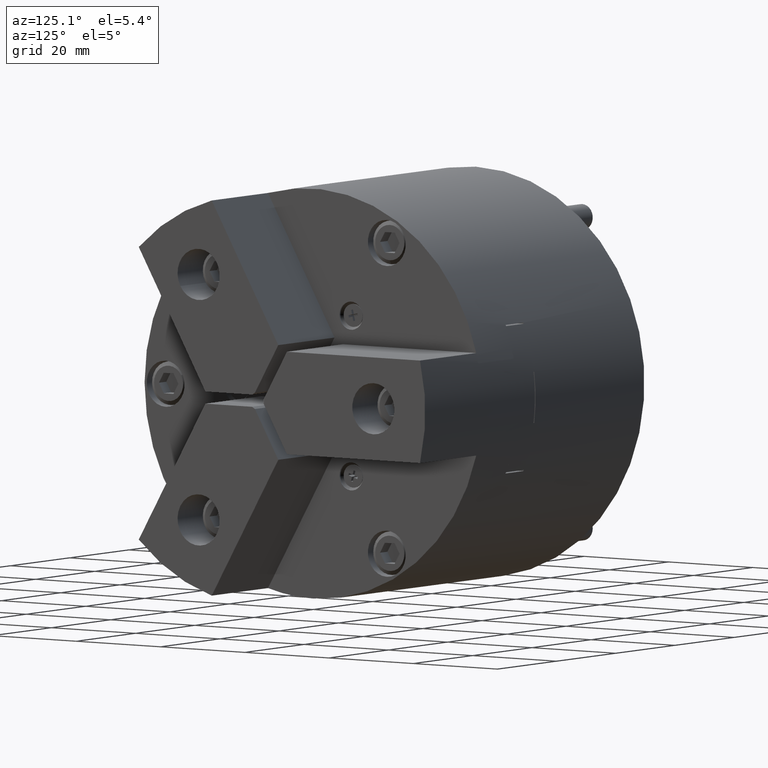
[diagram: clean part render]
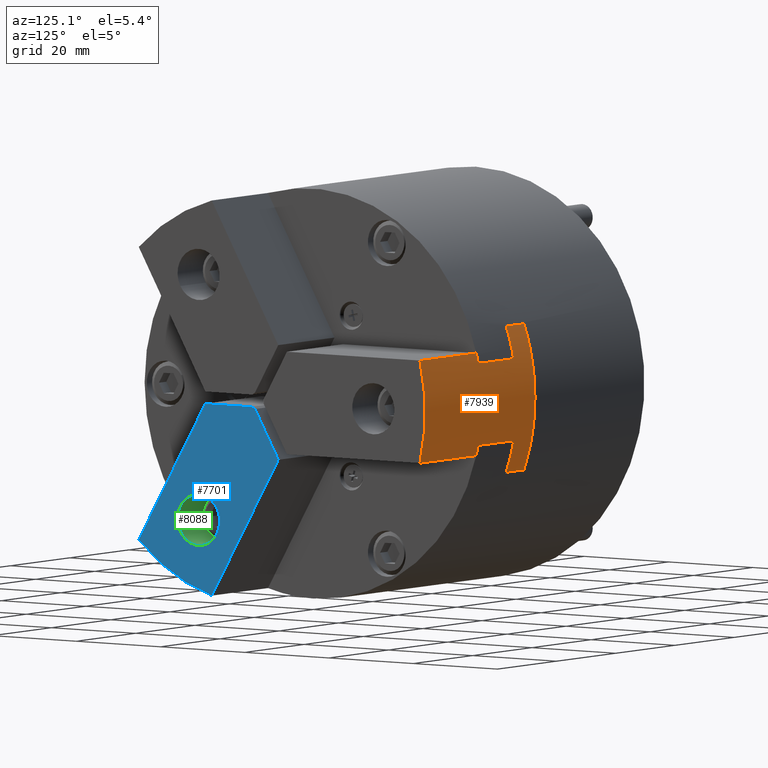
[diagram: same view with three faces highlighted in distinct colors, each labeled with its STEP entity id]
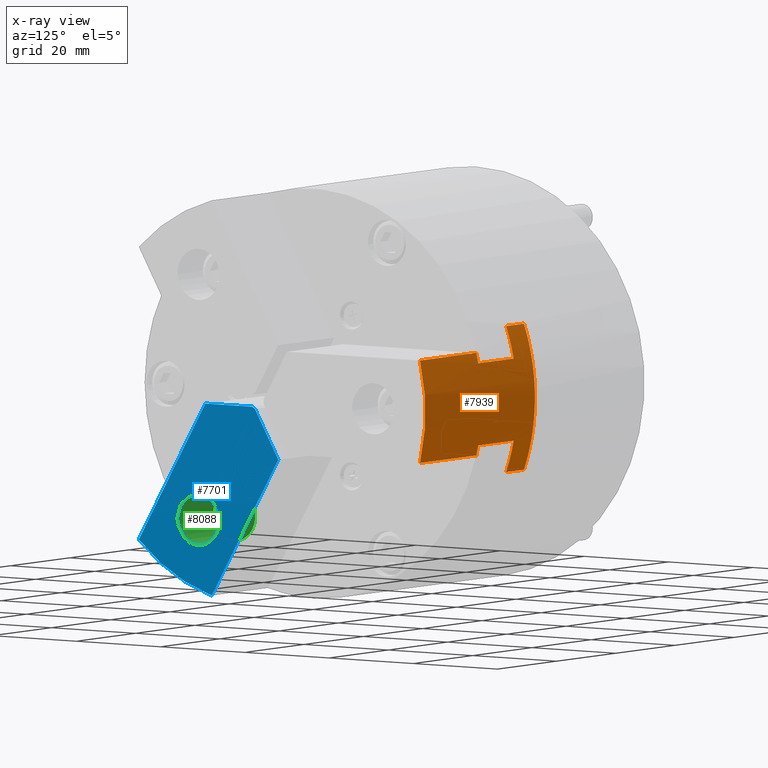
[diagram: x-ray of the same camera — body ghosted, the three highlighted faces saturated]
A machine part, auxiliary view with three faces highlighted in distinct colors.
The next image is the same camera in x-ray (body ghosted, the three faces saturated) — at least one of them is partly hidden behind the body in this view.
Their STEP definitions:

[orange] entity #7939 — the highlighted cylindrical surface (partial cylindrical patch) has radius 40 mm, axis along (-1, -0, -0).
#134=CYLINDRICAL_SURFACE('',#8623,40.);
#383=CIRCLE('',#8624,40.);
#384=CIRCLE('',#8625,40.);
#385=CIRCLE('',#8626,40.);
#386=CIRCLE('',#8627,40.);
#387=CIRCLE('',#8628,40.);
#388=CIRCLE('',#8629,40.);
#1697=ORIENTED_EDGE('',*,*,#3335,.T.);
#1698=ORIENTED_EDGE('',*,*,#3336,.T.);
#1699=ORIENTED_EDGE('',*,*,#3337,.T.);
#1700=ORIENTED_EDGE('',*,*,#3253,.T.);
#1701=ORIENTED_EDGE('',*,*,#3338,.T.);
#1702=ORIENTED_EDGE('',*,*,#3278,.T.);
#1703=ORIENTED_EDGE('',*,*,#3339,.T.);
#1704=ORIENTED_EDGE('',*,*,#3340,.T.);
#1705=ORIENTED_EDGE('',*,*,#3341,.T.);
#1706=ORIENTED_EDGE('',*,*,#3261,.F.);
#1707=ORIENTED_EDGE('',*,*,#3342,.F.);
#1708=ORIENTED_EDGE('',*,*,#3343,.T.);
#3253=EDGE_CURVE('',#4140,#4143,#4926,.T.);
#3261=EDGE_CURVE('',#4151,#4147,#4934,.T.);
#3278=EDGE_CURVE('',#4161,#4166,#4951,.T.);
#3335=EDGE_CURVE('',#4209,#4210,#383,.T.);
#3336=EDGE_CURVE('',#4210,#4211,#4988,.T.);
#3337=EDGE_CURVE('',#4211,#4140,#384,.T.);
#3338=EDGE_CURVE('',#4143,#4161,#385,.T.);
#3339=EDGE_CURVE('',#4166,#4212,#386,.T.);
#3340=EDGE_CURVE('',#4212,#4213,#4989,.T.);
#3341=EDGE_CURVE('',#4213,#4147,#387,.T.);
#3342=EDGE_CURVE('',#4214,#4151,#388,.T.);
#3343=EDGE_CURVE('',#4214,#4209,#4990,.T.);
#4140=VERTEX_POINT('',#12758);
#4143=VERTEX_POINT('',#12764);
#4147=VERTEX_POINT('',#12775);
#4151=VERTEX_POINT('',#12782);
#4161=VERTEX_POINT('',#12809);
#4166=VERTEX_POINT('',#12818);
#4209=VERTEX_POINT('',#12940);
#4210=VERTEX_POINT('',#12941);
#4211=VERTEX_POINT('',#12943);
#4212=VERTEX_POINT('',#12947);
#4213=VERTEX_POINT('',#12949);
#4214=VERTEX_POINT('',#12952);
#4926=LINE('',#12765,#5622);
#4934=LINE('',#12783,#5630);
#4951=LINE('',#12819,#5647);
#4988=LINE('',#12942,#5684);
#4989=LINE('',#12948,#5685);
#4990=LINE('',#12953,#5686);
#5622=VECTOR('',#10218,1000.);
#5630=VECTOR('',#10230,1000.);
#5647=VECTOR('',#10255,1000.);
#5684=VECTOR('',#10352,1000.);
#5685=VECTOR('',#10359,1000.);
#5686=VECTOR('',#10364,1000.);
#6172=EDGE_LOOP('',(#1697,#1698,#1699,#1700,#1701,#1702,#1703,#1704,#1705,
#1706,#1707,#1708));
#6911=FACE_BOUND('',#6172,.T.);
#7939=ADVANCED_FACE('',(#6911),#134,.T.);
#8623=AXIS2_PLACEMENT_3D('',#12938,#10348,#10349);
#8624=AXIS2_PLACEMENT_3D('',#12939,#10350,#10351);
#8625=AXIS2_PLACEMENT_3D('',#12944,#10353,#10354);
#8626=AXIS2_PLACEMENT_3D('',#12945,#10355,#10356);
#8627=AXIS2_PLACEMENT_3D('',#12946,#10357,#10358);
#8628=AXIS2_PLACEMENT_3D('',#12950,#10360,#10361);
#8629=AXIS2_PLACEMENT_3D('',#12951,#10362,#10363);
#10218=DIRECTION('',(-1.,-1.2490009027033E-16,1.65843612768595E-18));
#10230=DIRECTION('',(-1.,-8.32667268468866E-17,-4.0773630420284E-16));
#10255=DIRECTION('',(1.,1.2490009027033E-16,-1.65843612768595E-18));
#10348=DIRECTION('',(-1.,-8.32667268468866E-17,-4.0773630420284E-16));
#10349=DIRECTION('',(4.33680868994202E-16,1.03983882187306E-16,-1.));
#10350=DIRECTION('',(1.,8.32667268468866E-17,4.0773630420284E-16));
#10351=DIRECTION('',(-4.0773630420284E-16,-1.03983882187306E-16,1.));
#10352=DIRECTION('',(-1.,-1.2490009027033E-16,1.65843612768595E-18));
#10353=DIRECTION('',(-1.,-1.2490009027033E-16,1.4043631420583E-16));
#10354=DIRECTION('',(-1.3010426069826E-16,1.37781820271733E-17,-1.));
#10355=DIRECTION('',(1.,1.2490009027033E-16,-1.65843612768595E-18));
#10356=DIRECTION('',(0.,-1.37781820271733E-17,1.));
#10357=DIRECTION('',(-1.,-1.2490009027033E-16,-1.37119441950459E-16));
#10358=DIRECTION('',(-1.3010426069826E-16,-1.37781820271733E-17,1.));
#10359=DIRECTION('',(1.,1.2490009027033E-16,-1.65843612768595E-18));
#10360=DIRECTION('',(1.,8.32667268468866E-17,4.0773630420284E-16));
#10361=DIRECTION('',(-4.0773630420284E-16,-1.03983882187306E-16,1.));
#10362=DIRECTION('',(1.,8.32667268468866E-17,4.0773630420284E-16));
#10363=DIRECTION('',(-4.33680868994202E-16,-1.03983882187306E-16,1.));
#10364=DIRECTION('',(-1.,-8.32667268468866E-17,-4.0773630420284E-16));
#12758=CARTESIAN_POINT('',(-12.,37.3758587763758,-14.25));
#12764=CARTESIAN_POINT('',(-18.,37.3758587763758,-14.25));
#12765=CARTESIAN_POINT('',(6.93889390390723E-15,37.3758587763758,-14.25));
#12775=CARTESIAN_POINT('',(6.28262283308533E-15,38.7300651534096,10.));
#12782=CARTESIAN_POINT('',(19.,38.7300651534096,10.));
#12783=CARTESIAN_POINT('',(19.,38.7300651534096,10.));
#12809=CARTESIAN_POINT('',(-18.,37.3758587763758,14.25));
#12818=CARTESIAN_POINT('',(-12.,37.3758587763758,14.25));
#12819=CARTESIAN_POINT('',(6.93889390390723E-15,37.3758587763758,14.25));
#12938=CARTESIAN_POINT('',(19.,0.000231691335453851,1.37536264004144E-14));
#12939=CARTESIAN_POINT('',(1.32567568034147E-14,0.000231691335452269,6.00663662056047E-15));
#12940=CARTESIAN_POINT('',(1.3682985092573E-14,38.7300651534096,-9.99999999999999));
#12941=CARTESIAN_POINT('',(6.7986815965567E-15,39.1920675758663,-8.));
#12942=CARTESIAN_POINT('',(3.46944695195361E-15,39.1920675758663,-8.));
#12943=CARTESIAN_POINT('',(-12.,39.1920675758663,-7.99999999999999));
#12944=CARTESIAN_POINT('',(-12.,0.000231691335446198,7.1446762595652E-16));
#12945=CARTESIAN_POINT('',(-18.,0.00023169133544533,7.24418242722636E-16));
#12946=CARTESIAN_POINT('',(-12.,0.000231691335446198,7.1446762595652E-16));
#12947=CARTESIAN_POINT('',(-12.,39.1920675758663,7.99999999999999));
#12948=CARTESIAN_POINT('',(3.46944695195361E-15,39.1920675758663,8.));
#12949=CARTESIAN_POINT('',(5.91564650326046E-15,39.1920675758663,8.));
#12950=CARTESIAN_POINT('',(1.32567568034147E-14,0.000231691335452269,6.00663662056047E-15));
#12951=CARTESIAN_POINT('',(19.,0.000231691335453851,1.37536264004144E-14));
#12952=CARTESIAN_POINT('',(19.,38.7300651534096,-10.));
#12953=CARTESIAN_POINT('',(19.,38.7300651534096,-10.));

[blue] entity #7701 — the highlighted planar face has unit normal (1, 0, -0).
#241=CIRCLE('',#8244,40.);
#242=CIRCLE('',#8245,5.);
#570=ORIENTED_EDGE('',*,*,#2664,.T.);
#571=ORIENTED_EDGE('',*,*,#2662,.T.);
#572=ORIENTED_EDGE('',*,*,#2665,.T.);
#573=ORIENTED_EDGE('',*,*,#2666,.T.);
#574=ORIENTED_EDGE('',*,*,#2667,.T.);
#575=ORIENTED_EDGE('',*,*,#2668,.T.);
#576=ORIENTED_EDGE('',*,*,#2669,.F.);
#2662=EDGE_CURVE('',#3710,#3709,#4480,.T.);
#2664=EDGE_CURVE('',#3711,#3710,#4482,.T.);
#2665=EDGE_CURVE('',#3709,#3712,#241,.T.);
#2666=EDGE_CURVE('',#3712,#3713,#4483,.T.);
#2667=EDGE_CURVE('',#3713,#3714,#4484,.T.);
#2668=EDGE_CURVE('',#3714,#3711,#4485,.T.);
#2669=EDGE_CURVE('',#3715,#3715,#242,.T.);
#3709=VERTEX_POINT('',#11441);
#3710=VERTEX_POINT('',#11443);
#3711=VERTEX_POINT('',#11447);
#3712=VERTEX_POINT('',#11449);
#3713=VERTEX_POINT('',#11451);
#3714=VERTEX_POINT('',#11453);
#3715=VERTEX_POINT('',#11456);
#4480=LINE('',#11442,#5176);
#4482=LINE('',#11446,#5178);
#4483=LINE('',#11450,#5179);
#4484=LINE('',#11452,#5180);
#4485=LINE('',#11454,#5181);
#5176=VECTOR('',#9080,1000.);
#5178=VECTOR('',#9084,1000.);
#5179=VECTOR('',#9087,1000.);
#5180=VECTOR('',#9088,1000.);
#5181=VECTOR('',#9089,1000.);
#5870=EDGE_LOOP('',(#570,#571,#572,#573,#574,#575));
#5871=EDGE_LOOP('',(#576));
#6609=FACE_BOUND('',#5870,.T.);
#6610=FACE_BOUND('',#5871,.T.);
#7357=PLANE('',#8243);
#7701=ADVANCED_FACE('',(#6609,#6610),#7357,.T.);
#8243=AXIS2_PLACEMENT_3D('',#11445,#9082,#9083);
#8244=AXIS2_PLACEMENT_3D('',#11448,#9085,#9086);
#8245=AXIS2_PLACEMENT_3D('',#11455,#9090,#9091);
#9080=DIRECTION('',(-8.32667268468868E-17,-0.499999999999992,-0.866025403784443));
#9082=DIRECTION('',(1.,3.11476634061399E-16,-2.75979252840801E-16));
#9083=DIRECTION('',(-4.0773630420284E-16,0.866025403784443,-0.499999999999992));
#9084=DIRECTION('',(3.11476634061396E-16,-1.,-1.08246744900953E-14));
#9085=DIRECTION('',(1.,3.11476634061399E-16,-2.75979252840801E-16));
#9086=DIRECTION('',(-4.33680868994202E-16,0.866025403784443,-0.499999999999992));
#9087=DIRECTION('',(8.32667268468867E-17,0.499999999999992,0.866025403784443));
#9088=DIRECTION('',(3.94743360908283E-16,-0.500000000000007,0.866025403784434));
#9089=DIRECTION('',(4.0773630420284E-16,-0.866025403784443,0.499999999999992));
#9090=DIRECTION('',(1.,3.11476634061399E-16,-2.75979252840801E-16));
#9091=DIRECTION('',(-6.93889390390723E-16,0.866025403784443,-0.499999999999992));
#11441=CARTESIAN_POINT('',(19.,-28.0252866145489,-28.5412203130794));
#11442=CARTESIAN_POINT('',(19.,-28.0252866145489,-28.5412203130795));
#11443=CARTESIAN_POINT('',(19.,-12.2316511756223,-1.18584129663758));
#11445=CARTESIAN_POINT('',(19.,-0.000115845667715013,-0.000200650582346655));
#11446=CARTESIAN_POINT('',(19.,-12.2316511756223,-1.18584129663758));
#11447=CARTESIAN_POINT('',(19.,-1.14652600718148,-1.18584129663746));
#11448=CARTESIAN_POINT('',(19.,-0.000115845667715013,-0.000200650582346655));
#11449=CARTESIAN_POINT('',(19.,-10.70477853886,-38.5412203130793));
#11450=CARTESIAN_POINT('',(19.,5.08885690006657,-11.1858412966374));
#11451=CARTESIAN_POINT('',(19.,5.08885690006657,-11.1858412966374));
#11452=CARTESIAN_POINT('',(19.,-0.453705684153925,-1.58584129663745));
#11453=CARTESIAN_POINT('',(19.,-0.453705684153925,-1.58584129663745));
#11454=CARTESIAN_POINT('',(19.,-1.14652600718148,-1.18584129663746));
#11455=CARTESIAN_POINT('',(19.,-13.8251158456675,-23.9458030652222));
#11456=CARTESIAN_POINT('',(19.,-9.49498882674527,-26.4458030652222));

[green] entity #8088 — the highlighted cylindrical surface (bore or boss wall) has radius 5 mm, axis along (1, 0, -0).
#198=CYLINDRICAL_SURFACE('',#8866,5.);
#242=CIRCLE('',#8245,5.);
#250=CIRCLE('',#8261,5.);
#2343=ORIENTED_EDGE('',*,*,#2669,.T.);
#2344=ORIENTED_EDGE('',*,*,#2692,.F.);
#2669=EDGE_CURVE('',#3715,#3715,#242,.T.);
#2692=EDGE_CURVE('',#3731,#3731,#250,.T.);
#3715=VERTEX_POINT('',#11456);
#3731=VERTEX_POINT('',#11503);
#6421=EDGE_LOOP('',(#2343));
#6422=EDGE_LOOP('',(#2344));
#7160=FACE_BOUND('',#6421,.T.);
#7161=FACE_BOUND('',#6422,.T.);
#8088=ADVANCED_FACE('',(#7160,#7161),#198,.F.);
#8245=AXIS2_PLACEMENT_3D('',#11455,#9090,#9091);
#8261=AXIS2_PLACEMENT_3D('',#11502,#9137,#9138);
#8866=AXIS2_PLACEMENT_3D('',#13446,#10950,#10951);
#9090=DIRECTION('',(1.,3.11476634061399E-16,-2.75979252840801E-16));
#9091=DIRECTION('',(-6.93889390390723E-16,0.866025403784443,-0.499999999999992));
#9137=DIRECTION('',(1.,3.11476634061399E-16,-2.75979252840801E-16));
#9138=DIRECTION('',(-3.46944695195361E-16,0.866025403784443,-0.499999999999992));
#10950=DIRECTION('',(1.,3.11476634061399E-16,-2.75979252840801E-16));
#10951=DIRECTION('',(-6.93889390390723E-16,0.866025403784443,-0.499999999999992));
#11455=CARTESIAN_POINT('',(19.,-13.8251158456675,-23.9458030652222));
#11456=CARTESIAN_POINT('',(19.,-9.49498882674527,-26.4458030652222));
#11502=CARTESIAN_POINT('',(7.00000000000001,-13.8251158456675,-23.9458030652222));
#11503=CARTESIAN_POINT('',(7.00000000000001,-9.49498882674528,-26.4458030652222));
#13446=CARTESIAN_POINT('',(19.,-13.8251158456675,-23.9458030652222));